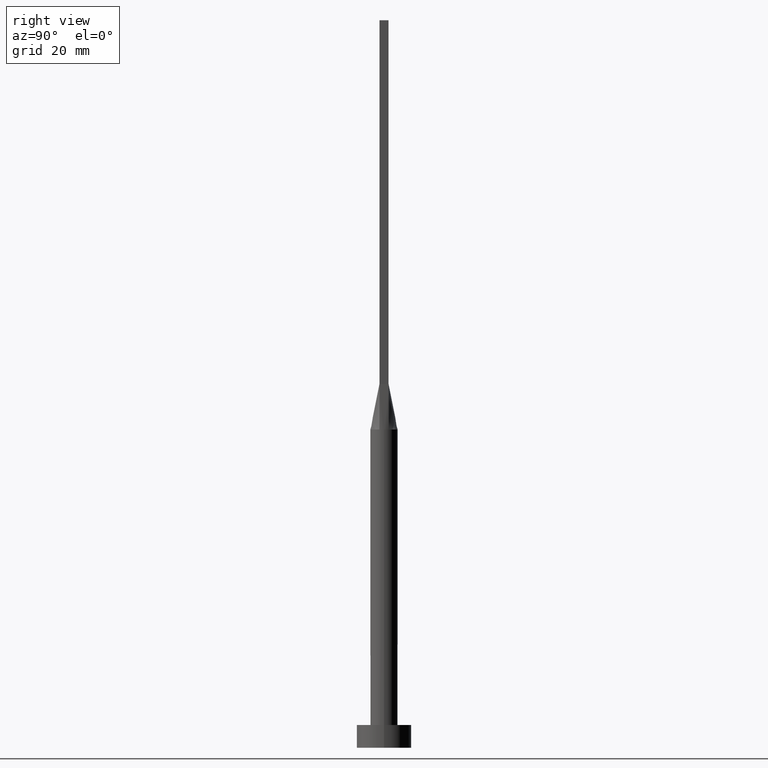
[diagram: clean part render]
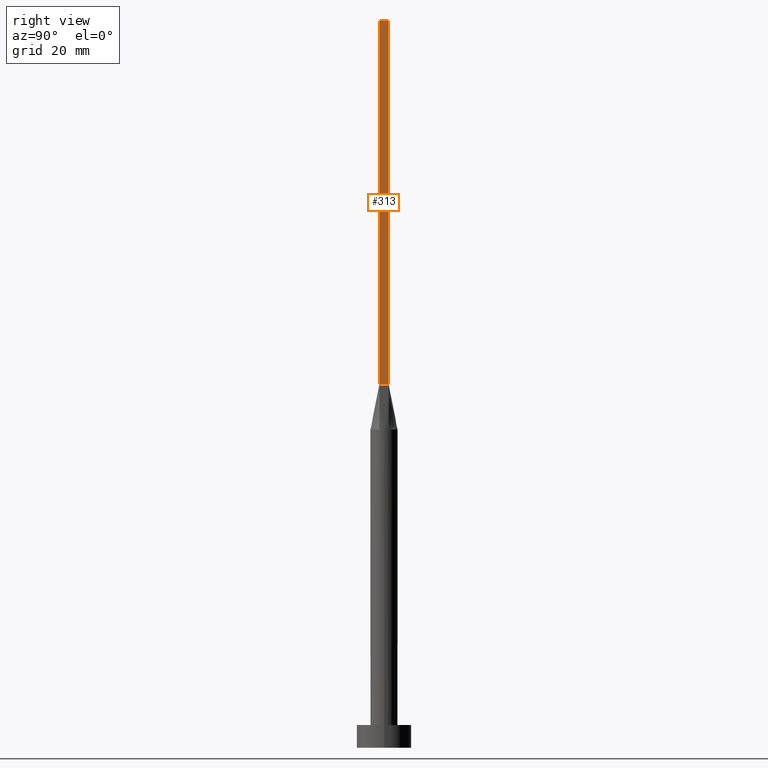
[diagram: same view with one face highlighted and labeled with its STEP entity id]
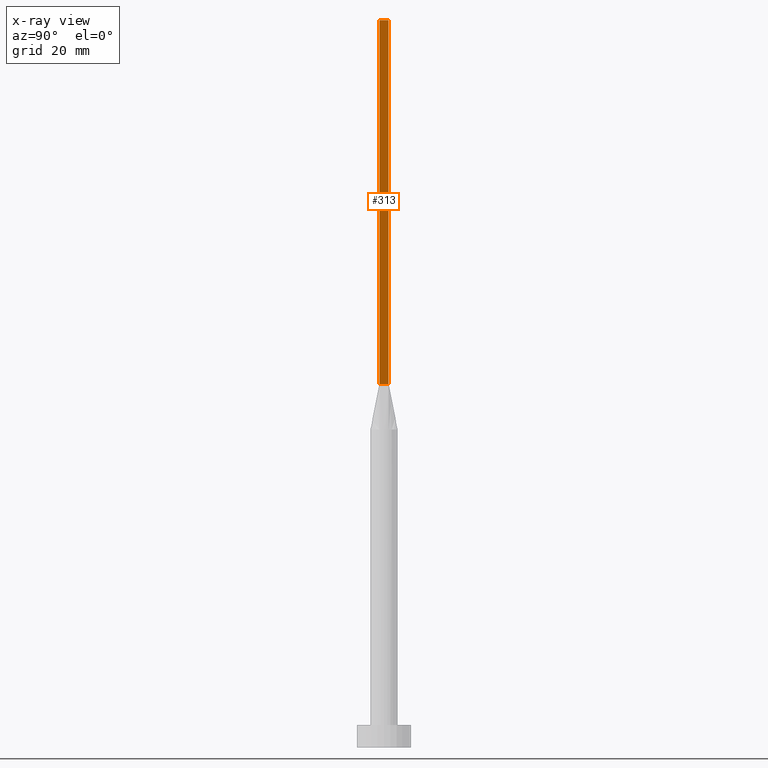
[diagram: x-ray of the same camera — body ghosted, the highlighted face saturated]
A machine part, right view. The second image highlights one B-rep face of the part: STEP entity #313.
The next image is the same camera in x-ray: the body ghosted, the highlighted face saturated — about 0% of this face is hidden behind the body in this view.
In plain terms, the highlighted planar face has unit normal (-1, -0, 0).
Its self-contained STEP definition (entity closure, byte-faithful):
#24 = EDGE_CURVE ( 'NONE', #315, #439, #117, .T. ) ;
#45 = AXIS2_PLACEMENT_3D ( 'NONE', #472, #368, #339 ) ;
#57 = DIRECTION ( 'NONE',  ( -0.000000000000000000, -0.000000000000000000, -1.000000000000000000 ) ) ;
#68 = CARTESIAN_POINT ( 'NONE',  ( 2.750000000000000000, -0.9999999999999997780, 160.0000000000000000 ) ) ;
#91 = DIRECTION ( 'NONE',  ( -0.000000000000000000, -0.000000000000000000, -1.000000000000000000 ) ) ;
#92 = ORIENTED_EDGE ( 'NONE', *, *, #157, .T. ) ;
#117 = LINE ( 'NONE', #68, #272 ) ;
#136 = ORIENTED_EDGE ( 'NONE', *, *, #24, .F. ) ;
#144 = CARTESIAN_POINT ( 'NONE',  ( 2.749999999999999556, 1.000000000000000000, 160.0000000000000000 ) ) ;
#145 = CARTESIAN_POINT ( 'NONE',  ( 2.750000000000000000, -0.9999999999999997780, 160.0000000000000000 ) ) ;
#157 = EDGE_CURVE ( 'NONE', #235, #322, #390, .T. ) ;
#160 = ORIENTED_EDGE ( 'NONE', *, *, #382, .T. ) ;
#182 = EDGE_CURVE ( 'NONE', #439, #322, #454, .T. ) ;
#203 = CARTESIAN_POINT ( 'NONE',  ( 2.750000000000000000, -0.9999999999999997780, 160.0000000000000000 ) ) ;
#235 = VERTEX_POINT ( 'NONE', #504 ) ;
#272 = VECTOR ( 'NONE', #473, 1000.000000000000000 ) ;
#288 = VECTOR ( 'NONE', #91, 1000.000000000000000 ) ;
#313 = ADVANCED_FACE ( 'NONE', ( #474 ), #559, .F. ) ;
#315 = VERTEX_POINT ( 'NONE', #203 ) ;
#318 = CARTESIAN_POINT ( 'NONE',  ( 2.749999999999999556, 1.000000000000000000, 80.00000000000000000 ) ) ;
#322 = VERTEX_POINT ( 'NONE', #424 ) ;
#339 = DIRECTION ( 'NONE',  ( 2.168404344971008868E-16, -1.000000000000000000, 0.000000000000000000 ) ) ;
#362 = LINE ( 'NONE', #145, #481 ) ;
#368 = DIRECTION ( 'NONE',  ( -1.000000000000000000, -2.168404344971008868E-16, 0.000000000000000000 ) ) ;
#382 = EDGE_CURVE ( 'NONE', #315, #235, #362, .T. ) ;
#390 = LINE ( 'NONE', #318, #553 ) ;
#397 = ORIENTED_EDGE ( 'NONE', *, *, #182, .F. ) ;
#410 = DIRECTION ( 'NONE',  ( -2.168404344971008868E-16, 1.000000000000000000, -0.000000000000000000 ) ) ;
#424 = CARTESIAN_POINT ( 'NONE',  ( 2.749999999999999556, 1.000000000000000000, 80.00000000000000000 ) ) ;
#439 = VERTEX_POINT ( 'NONE', #531 ) ;
#454 = LINE ( 'NONE', #144, #288 ) ;
#472 = CARTESIAN_POINT ( 'NONE',  ( 2.750000000000000000, -0.9999999999999997780, 160.0000000000000000 ) ) ;
#473 = DIRECTION ( 'NONE',  ( -2.168404344971008868E-16, 1.000000000000000000, 0.000000000000000000 ) ) ;
#474 = FACE_OUTER_BOUND ( 'NONE', #543, .T. ) ;
#481 = VECTOR ( 'NONE', #57, 1000.000000000000000 ) ;
#504 = CARTESIAN_POINT ( 'NONE',  ( 2.750000000000000000, -0.9999999999999997780, 80.00000000000000000 ) ) ;
#531 = CARTESIAN_POINT ( 'NONE',  ( 2.749999999999999556, 1.000000000000000000, 160.0000000000000000 ) ) ;
#543 = EDGE_LOOP ( 'NONE', ( #92, #397, #136, #160 ) ) ;
#553 = VECTOR ( 'NONE', #410, 1000.000000000000000 ) ;
#559 = PLANE ( 'NONE',  #45 ) ;